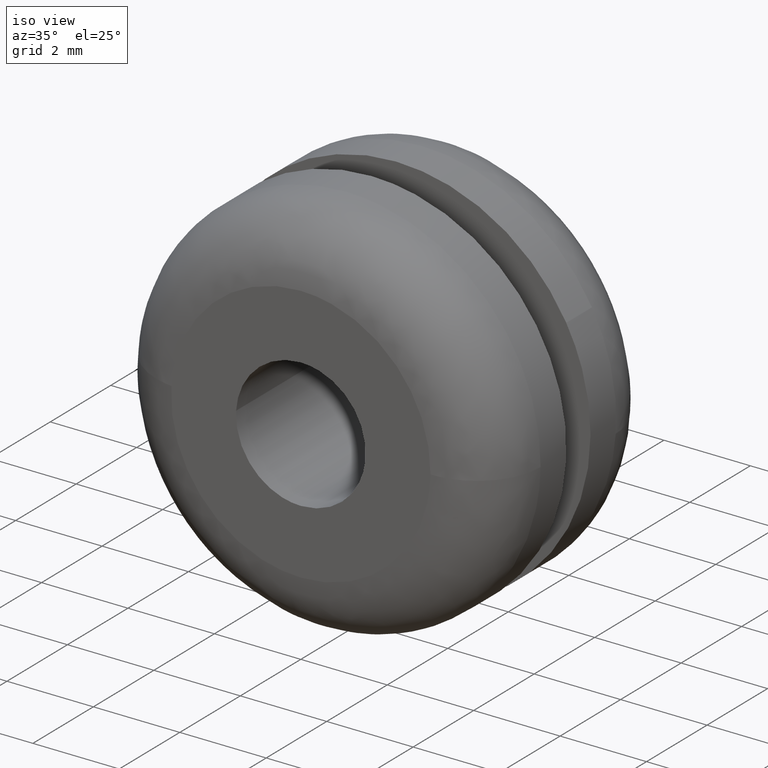
[diagram: clean part render]
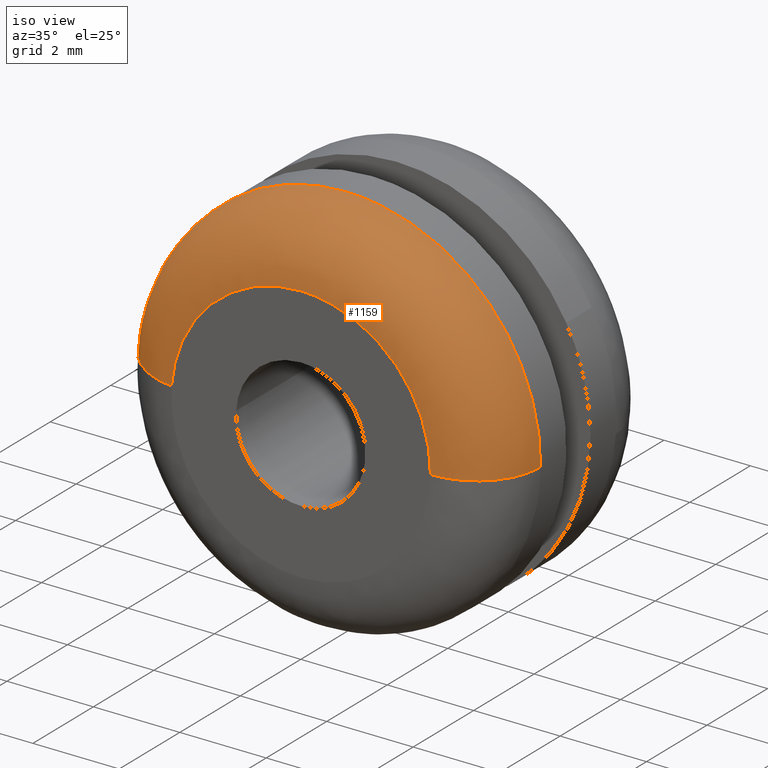
[diagram: same view with one face highlighted and labeled with its STEP entity id]
A machine part, iso view. The second image highlights one B-rep face of the part: STEP entity #1159.
In plain terms, the highlighted face is a freeform B-spline surface patch.
Its self-contained STEP definition (entity closure, byte-faithful):
#72=CARTESIAN_POINT('',(4.499644736739940,1.500001817245184,-0.056544169457881));
#73=VERTEX_POINT('',#72);
#135=CARTESIAN_POINT('',(-4.489045532774552,1.500001788692589,0.313799625011947));
#136=VERTEX_POINT('',#135);
#152=CARTESIAN_POINT('',(0.0,1.500000000000000,4.500000000000000));
#153=VERTEX_POINT('',#152);
#154=CARTESIAN_POINT('',(0.0,1.500000000000000,4.500000000000000));
#155=CARTESIAN_POINT('',(-4.196415819330905,1.500000894346295,4.499999999999927));
#156=CARTESIAN_POINT('',(-4.489045532774553,1.500001788692590,0.313799625011947));
#164=(BOUNDED_CURVE()B_SPLINE_CURVE(2,(#154,#155,#156),.UNSPECIFIED.,.F.,.U.)B_SPLINE_CURVE_WITH_KNOTS((3,3),(0.500000000000000,0.737833686806281),.UNSPECIFIED.)CURVE()GEOMETRIC_REPRESENTATION_ITEM()RATIONAL_B_SPLINE_CURVE((1.0,0.721360503716151,0.972879876960564))REPRESENTATION_ITEM(''));
#165=EDGE_CURVE('',#153,#136,#164,.T.);
#167=CARTESIAN_POINT('',(4.499644736739940,1.500001817245185,-0.056544169457881));
#168=CARTESIAN_POINT('',(4.499999999996803,1.500001811607657,-0.028273200776630));
#169=CARTESIAN_POINT('',(4.499999999996813,1.500001805898842,3.990191E-014));
#170=CARTESIAN_POINT('',(4.499999999998416,1.500000897276250,4.500000000000020));
#171=CARTESIAN_POINT('',(0.0,1.500000000000000,4.500000000000000));
#179=(BOUNDED_CURVE()B_SPLINE_CURVE(2,(#167,#168,#169,#170,#171),.UNSPECIFIED.,.F.,.U.)B_SPLINE_CURVE_WITH_KNOTS((3,2,3),(0.247784413567222,0.250000000000000,0.500000000000000),.UNSPECIFIED.)CURVE()GEOMETRIC_REPRESENTATION_ITEM()RATIONAL_B_SPLINE_CURVE((0.994854566418424,0.997404279032577,1.0,0.707106781186547,1.0))REPRESENTATION_ITEM(''));
#180=EDGE_CURVE('',#73,#153,#179,.T.);
#1037=CARTESIAN_POINT('',(2.999763132632581,-2.416769E-017,-0.037698119653299));
#1038=VERTEX_POINT('',#1037);
#1039=CARTESIAN_POINT('',(4.499644736739940,1.500001817245184,-0.056544169457881));
#1040=CARTESIAN_POINT('',(4.499646534921304,4.234577E-011,-0.056545697303434));
#1041=CARTESIAN_POINT('',(2.999763132632581,-2.416769E-017,-0.037698119653299));
#1049=(BOUNDED_CURVE()B_SPLINE_CURVE(2,(#1039,#1040,#1041),.UNSPECIFIED.,.F.,.U.)B_SPLINE_CURVE_WITH_KNOTS((3,3),(-1.725135885666325,-0.274865356747136),.UNSPECIFIED.)CURVE()GEOMETRIC_REPRESENTATION_ITEM()RATIONAL_B_SPLINE_CURVE((0.883342592930895,0.624617002494017,0.883342149642730))REPRESENTATION_ITEM(''));
#1050=EDGE_CURVE('',#73,#1038,#1049,.T.);
#1067=CARTESIAN_POINT('',(-2.992697021620958,-1.838323E-017,0.209199754758038));
#1068=VERTEX_POINT('',#1067);
#1084=CARTESIAN_POINT('',(-4.489045532774553,1.500001788692589,0.313799625011947));
#1085=CARTESIAN_POINT('',(-4.489047316621336,2.032624E-010,0.313799756820915));
#1086=CARTESIAN_POINT('',(-2.992697021620958,-1.838323E-017,0.209199754758038));
#1094=(BOUNDED_CURVE()B_SPLINE_CURVE(2,(#1084,#1085,#1086),.UNSPECIFIED.,.F.,.U.)B_SPLINE_CURVE_WITH_KNOTS((3,3),(-1.725135866145949,-0.274865356857148),.UNSPECIFIED.)CURVE()GEOMETRIC_REPRESENTATION_ITEM()RATIONAL_B_SPLINE_CURVE((0.863472501871228,0.610566746636410,0.863472075324237))REPRESENTATION_ITEM(''));
#1095=EDGE_CURVE('',#136,#1068,#1094,.T.);
#1100=CARTESIAN_POINT('',(4.496013897839067,1.604307614881042,-0.056501551081305));
#1101=CARTESIAN_POINT('',(4.552515448920372,1.604307614881042,4.439512346757763));
#1102=CARTESIAN_POINT('',(0.056501551081305,1.604307614881042,4.496013897839067));
#1103=CARTESIAN_POINT('',(-4.189324639184717,1.604307614881043,4.549371331962428));
#1104=CARTESIAN_POINT('',(-4.485423283760370,1.604307614881043,0.313546424532286));
#1105=CARTESIAN_POINT('',(4.615943507798231,-0.116306078043954,-0.058008710342206));
#1106=CARTESIAN_POINT('',(4.673952218140437,-0.116306078043954,4.557934797456025));
#1107=CARTESIAN_POINT('',(0.058008710342206,-0.116306078043954,4.615943507798231));
#1108=CARTESIAN_POINT('',(-4.301073419634713,-0.116306078043954,4.670724232954104));
#1109=CARTESIAN_POINT('',(-4.605070392765457,-0.116306078043954,0.321910166560824));
#1110=CARTESIAN_POINT('',(2.895465525278112,0.003630964253733,-0.036387408268309));
#1111=CARTESIAN_POINT('',(2.931852933546420,0.003630964253733,2.859078117009803));
#1112=CARTESIAN_POINT('',(0.036387408268308,0.003630964253733,2.895465525278112));
#1113=CARTESIAN_POINT('',(-2.697955420642185,0.003630964253733,2.929828099445364));
#1114=CARTESIAN_POINT('',(-2.888645093079019,0.003630964253733,0.201926169143693));
#1122=(BOUNDED_SURFACE()B_SPLINE_SURFACE(2,2,((#1100,#1105,#1110),(#1101,#1106,#1111),(#1102,#1107,#1112),(#1103,#1108,#1113),(#1104,#1109,#1114)),.UNSPECIFIED.,.F.,.F.,.U.)B_SPLINE_SURFACE_WITH_KNOTS((3,2,3),(3,3),(0.0,7.449827939507855,14.601662761435390),(0.0,2.733563446293643),.UNSPECIFIED.)GEOMETRIC_REPRESENTATION_ITEM()RATIONAL_B_SPLINE_SURFACE(((0.910480335987150,0.597479283401742,0.910479844771032),(0.643806819713520,0.422481652911851,0.643806472371272),(0.910480335987150,0.597479283401742,0.910479844771032),(0.654473760364465,0.429481558131447,0.654473407267262),(0.889999809937335,0.584039465380119,0.889999329770730)))REPRESENTATION_ITEM('')SURFACE());
#1123=ORIENTED_EDGE('',*,*,#165,.T.);
#1124=ORIENTED_EDGE('',*,*,#1095,.T.);
#1125=CARTESIAN_POINT('',(0.0,-5.510729E-016,3.0));
#1126=VERTEX_POINT('',#1125);
#1127=CARTESIAN_POINT('',(0.0,-5.510729E-016,3.0));
#1128=CARTESIAN_POINT('',(-2.797610541753719,-5.510729E-016,3.000000000000000));
#1129=CARTESIAN_POINT('',(-2.992697021620958,-1.838323E-017,0.209199754758038));
#1137=(BOUNDED_CURVE()B_SPLINE_CURVE(2,(#1127,#1128,#1129),.UNSPECIFIED.,.F.,.U.)B_SPLINE_CURVE_WITH_KNOTS((3,3),(0.500000000000000,0.737833686532305),.UNSPECIFIED.)CURVE()GEOMETRIC_REPRESENTATION_ITEM()RATIONAL_B_SPLINE_CURVE((1.0,0.721360504037134,0.972879876381082))REPRESENTATION_ITEM(''));
#1138=EDGE_CURVE('',#1126,#1068,#1137,.T.);
#1139=ORIENTED_EDGE('',*,*,#1138,.F.);
#1140=CARTESIAN_POINT('',(2.999763132632581,-2.416769E-017,-0.037698119653299));
#1141=CARTESIAN_POINT('',(3.000000000000000,-5.510729E-016,-0.018849803978644));
#1142=CARTESIAN_POINT('',(3.0,-5.510729E-016,-3.061516E-016));
#1143=CARTESIAN_POINT('',(3.0,-5.510729E-016,2.999999999999999));
#1144=CARTESIAN_POINT('',(0.0,-5.510729E-016,3.0));
#1152=(BOUNDED_CURVE()B_SPLINE_CURVE(2,(#1140,#1141,#1142,#1143,#1144),.UNSPECIFIED.,.F.,.U.)B_SPLINE_CURVE_WITH_KNOTS((3,2,3),(0.247784295921379,0.250000000000000,0.500000000000000),.UNSPECIFIED.)CURVE()GEOMETRIC_REPRESENTATION_ITEM()RATIONAL_B_SPLINE_CURVE((0.994854295643210,0.997404141201899,1.0,0.707106781186548,1.0))REPRESENTATION_ITEM(''));
#1153=EDGE_CURVE('',#1038,#1126,#1152,.T.);
#1154=ORIENTED_EDGE('',*,*,#1153,.F.);
#1155=ORIENTED_EDGE('',*,*,#1050,.F.);
#1156=ORIENTED_EDGE('',*,*,#180,.T.);
#1157=EDGE_LOOP('',(#1123,#1124,#1139,#1154,#1155,#1156));
#1158=FACE_OUTER_BOUND('',#1157,.T.);
#1159=ADVANCED_FACE('',(#1158),#1122,.T.);